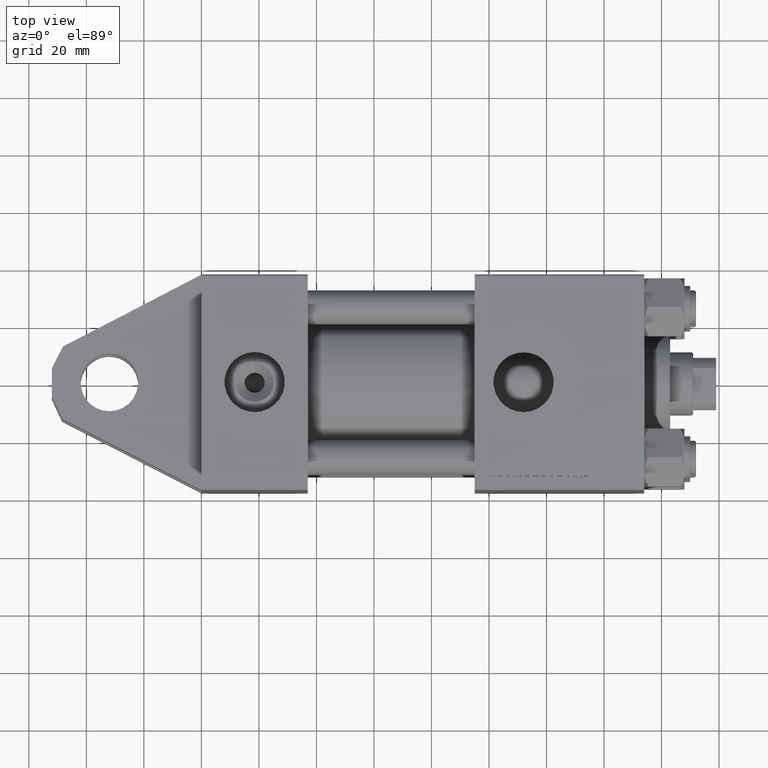
[diagram: clean part render]
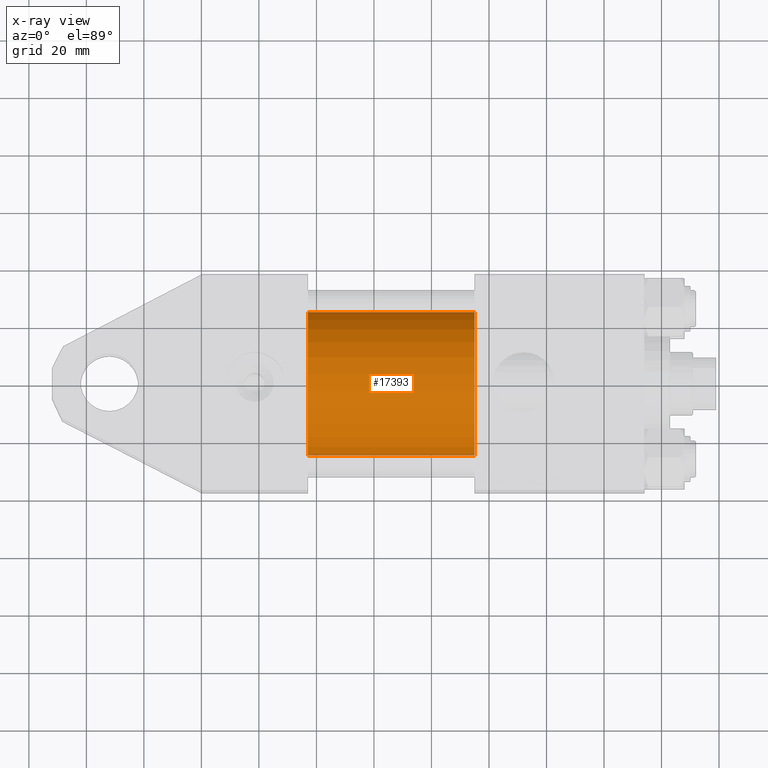
[diagram: x-ray — body ghosted, one internal face saturated and labeled with its STEP entity id]
A machine part, top view, then the same camera in x-ray: the body is ghosted and one INTERNAL B-rep face — a face not visible from any outside direction — is saturated and labeled: STEP entity #17393.
In plain terms, the highlighted cylindrical surface (partial cylindrical patch) has radius 25 mm, axis along (-1, -0, 0).
Its self-contained STEP definition (entity closure, byte-faithful):
#2694 = VERTEX_POINT ( 'NONE', #32585 ) ;
#5880 = CARTESIAN_POINT ( 'NONE',  ( 95.00000000000000000, -3.469446951953614189E-15, 25.00000000000000000 ) ) ;
#6908 = ORIENTED_EDGE ( 'NONE', *, *, #10793, .T. ) ;
#7444 = DIRECTION ( 'NONE',  ( 0.000000000000000000, 0.000000000000000000, 1.000000000000000000 ) ) ;
#9438 = EDGE_CURVE ( 'NONE', #46227, #2694, #21787, .T. ) ;
#10243 = VECTOR ( 'NONE', #30006, 1000.000000000000000 ) ;
#10793 = EDGE_CURVE ( 'NONE', #42689, #12322, #29762, .T. ) ;
#12210 = CARTESIAN_POINT ( 'NONE',  ( 37.00000000000000000, -4.078299540852317872E-16, -25.00000000000000000 ) ) ;
#12322 = VERTEX_POINT ( 'NONE', #12210 ) ;
#16233 = CARTESIAN_POINT ( 'NONE',  ( 95.00000000000000000, -4.078299540852317872E-16, -25.00000000000000000 ) ) ;
#17393 = ADVANCED_FACE ( 'NONE', ( #30310 ), #45649, .F. ) ;
#19522 = DIRECTION ( 'NONE',  ( 0.000000000000000000, 0.000000000000000000, -1.000000000000000000 ) ) ;
#21787 = LINE ( 'NONE', #37110, #38198 ) ;
#24363 = ORIENTED_EDGE ( 'NONE', *, *, #35306, .F. ) ;
#24753 = EDGE_LOOP ( 'NONE', ( #37718, #6908, #24363, #48961 ) ) ;
#26539 = CARTESIAN_POINT ( 'NONE',  ( 95.00000000000000000, -3.469446951953614189E-15, 0.000000000000000000 ) ) ;
#27036 = DIRECTION ( 'NONE',  ( -1.000000000000000000, -0.000000000000000000, -0.000000000000000000 ) ) ;
#27192 = AXIS2_PLACEMENT_3D ( 'NONE', #26539, #27036, #7444 ) ;
#29762 = LINE ( 'NONE', #48626, #10243 ) ;
#30006 = DIRECTION ( 'NONE',  ( -1.000000000000000000, -0.000000000000000000, -0.000000000000000000 ) ) ;
#30310 = FACE_OUTER_BOUND ( 'NONE', #24753, .T. ) ;
#32161 = DIRECTION ( 'NONE',  ( 1.000000000000000000, 0.000000000000000000, 0.000000000000000000 ) ) ;
#32585 = CARTESIAN_POINT ( 'NONE',  ( 37.00000000000000000, -3.469446951953614189E-15, 25.00000000000000000 ) ) ;
#32652 = CARTESIAN_POINT ( 'NONE',  ( 95.00000000000000000, -3.469446951953614189E-15, 0.000000000000000000 ) ) ;
#35306 = EDGE_CURVE ( 'NONE', #2694, #12322, #39704, .T. ) ;
#35893 = EDGE_CURVE ( 'NONE', #46227, #42689, #49321, .T. ) ;
#37110 = CARTESIAN_POINT ( 'NONE',  ( 95.00000000000000000, -3.469446951953614189E-15, 25.00000000000000000 ) ) ;
#37718 = ORIENTED_EDGE ( 'NONE', *, *, #35893, .T. ) ;
#38198 = VECTOR ( 'NONE', #41384, 1000.000000000000000 ) ;
#39704 = CIRCLE ( 'NONE', #45273, 25.00000000000000000 ) ;
#41384 = DIRECTION ( 'NONE',  ( -1.000000000000000000, -0.000000000000000000, -0.000000000000000000 ) ) ;
#41909 = CARTESIAN_POINT ( 'NONE',  ( 37.00000000000000000, -3.469446951953614189E-15, 0.000000000000000000 ) ) ;
#42689 = VERTEX_POINT ( 'NONE', #16233 ) ;
#45273 = AXIS2_PLACEMENT_3D ( 'NONE', #41909, #49439, #19522 ) ;
#45306 = AXIS2_PLACEMENT_3D ( 'NONE', #32652, #32161, #47246 ) ;
#45649 = CYLINDRICAL_SURFACE ( 'NONE', #27192, 25.00000000000000000 ) ;
#46227 = VERTEX_POINT ( 'NONE', #5880 ) ;
#47246 = DIRECTION ( 'NONE',  ( 0.000000000000000000, 0.000000000000000000, -1.000000000000000000 ) ) ;
#48626 = CARTESIAN_POINT ( 'NONE',  ( 95.00000000000000000, -4.078299540852317872E-16, -25.00000000000000000 ) ) ;
#48961 = ORIENTED_EDGE ( 'NONE', *, *, #9438, .F. ) ;
#49321 = CIRCLE ( 'NONE', #45306, 25.00000000000000000 ) ;
#49439 = DIRECTION ( 'NONE',  ( 1.000000000000000000, 0.000000000000000000, 0.000000000000000000 ) ) ;